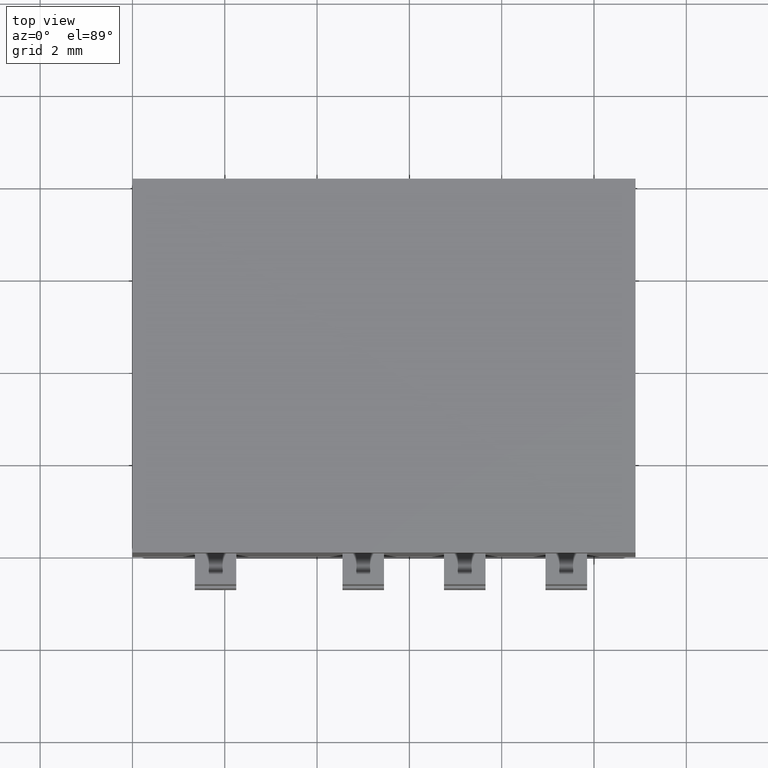
[diagram: clean part render]
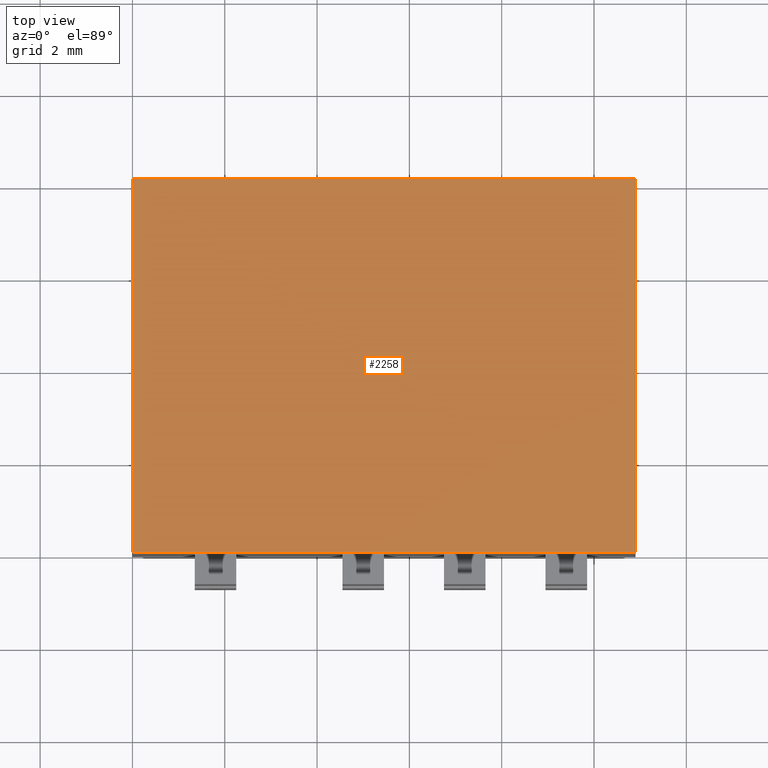
[diagram: same view with one face highlighted and labeled with its STEP entity id]
A machine part, top view. The second image highlights one B-rep face of the part: STEP entity #2258.
In plain terms, the highlighted planar face has unit normal (0, 0, -1).
Its self-contained STEP definition (entity closure, byte-faithful):
#34 = CARTESIAN_POINT ( 'NONE',  ( 0.0000000000000000000, 0.0000000000000000000, 0.0000000000000000000 ) ) ;
#342 = VERTEX_POINT ( 'NONE', #1065 ) ;
#675 = VECTOR ( 'NONE', #2778, 1000.000000000000000 ) ;
#695 = ORIENTED_EDGE ( 'NONE', *, *, #3143, .F. ) ;
#775 = VECTOR ( 'NONE', #1734, 1000.000000000000000 ) ;
#786 = DIRECTION ( 'NONE',  ( -0.0000000000000000000, -1.000000000000000000, -0.0000000000000000000 ) ) ;
#837 = VERTEX_POINT ( 'NONE', #1628 ) ;
#1065 = CARTESIAN_POINT ( 'NONE',  ( 10.90000000000000000, 0.0000000000000000000, 0.0000000000000000000 ) ) ;
#1167 = EDGE_CURVE ( 'NONE', #4301, #342, #1667, .T. ) ;
#1171 = LINE ( 'NONE', #3907, #2198 ) ;
#1481 = DIRECTION ( 'NONE',  ( 1.000000000000000000, 0.0000000000000000000, 0.0000000000000000000 ) ) ;
#1628 = CARTESIAN_POINT ( 'NONE',  ( 0.0000000000000000000, 8.099999999999999600, 0.0000000000000000000 ) ) ;
#1667 = LINE ( 'NONE', #34, #775 ) ;
#1734 = DIRECTION ( 'NONE',  ( 1.000000000000000000, 0.0000000000000000000, 0.0000000000000000000 ) ) ;
#1760 = VERTEX_POINT ( 'NONE', #3886 ) ;
#1920 = FACE_OUTER_BOUND ( 'NONE', #2493, .T. ) ;
#1955 = CARTESIAN_POINT ( 'NONE',  ( 0.0000000000000000000, 0.0000000000000000000, 0.0000000000000000000 ) ) ;
#2180 = VECTOR ( 'NONE', #1481, 1000.000000000000000 ) ;
#2198 = VECTOR ( 'NONE', #786, 1000.000000000000000 ) ;
#2258 = ADVANCED_FACE ( 'NONE', ( #1920 ), #4503, .F. ) ;
#2493 = EDGE_LOOP ( 'NONE', ( #2989, #3547, #695, #3573 ) ) ;
#2498 = EDGE_CURVE ( 'NONE', #1760, #342, #1171, .T. ) ;
#2580 = LINE ( 'NONE', #3931, #2180 ) ;
#2778 = DIRECTION ( 'NONE',  ( -0.0000000000000000000, -1.000000000000000000, -0.0000000000000000000 ) ) ;
#2989 = ORIENTED_EDGE ( 'NONE', *, *, #1167, .T. ) ;
#3143 = EDGE_CURVE ( 'NONE', #837, #1760, #2580, .T. ) ;
#3453 = CARTESIAN_POINT ( 'NONE',  ( 0.0000000000000000000, 8.099999999999999600, 0.0000000000000000000 ) ) ;
#3467 = CARTESIAN_POINT ( 'NONE',  ( 0.0000000000000000000, 8.099999999999999600, 0.0000000000000000000 ) ) ;
#3515 = AXIS2_PLACEMENT_3D ( 'NONE', #3453, #3813, #4168 ) ;
#3547 = ORIENTED_EDGE ( 'NONE', *, *, #2498, .F. ) ;
#3573 = ORIENTED_EDGE ( 'NONE', *, *, #3976, .T. ) ;
#3813 = DIRECTION ( 'NONE',  ( 0.0000000000000000000, 0.0000000000000000000, -1.000000000000000000 ) ) ;
#3886 = CARTESIAN_POINT ( 'NONE',  ( 10.90000000000000000, 8.099999999999999600, 0.0000000000000000000 ) ) ;
#3907 = CARTESIAN_POINT ( 'NONE',  ( 10.90000000000000000, 8.099999999999999600, 0.0000000000000000000 ) ) ;
#3931 = CARTESIAN_POINT ( 'NONE',  ( 0.0000000000000000000, 8.099999999999999600, 0.0000000000000000000 ) ) ;
#3976 = EDGE_CURVE ( 'NONE', #837, #4301, #4339, .T. ) ;
#4168 = DIRECTION ( 'NONE',  ( -1.000000000000000000, 0.0000000000000000000, -0.0000000000000000000 ) ) ;
#4301 = VERTEX_POINT ( 'NONE', #1955 ) ;
#4339 = LINE ( 'NONE', #3467, #675 ) ;
#4503 = PLANE ( 'NONE',  #3515 ) ;